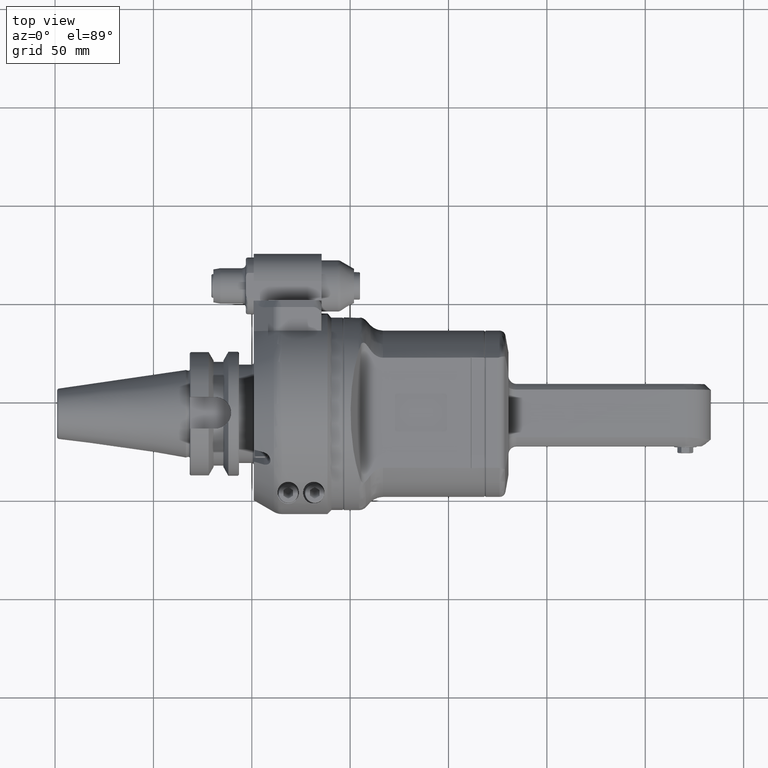
[diagram: clean part render]
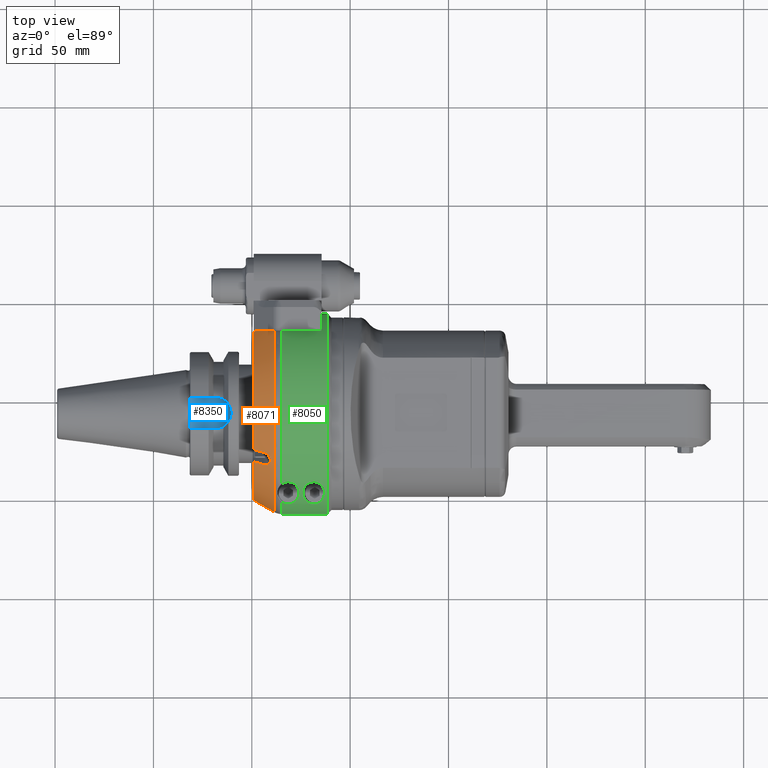
[diagram: same view with three faces highlighted in distinct colors, each labeled with its STEP entity id]
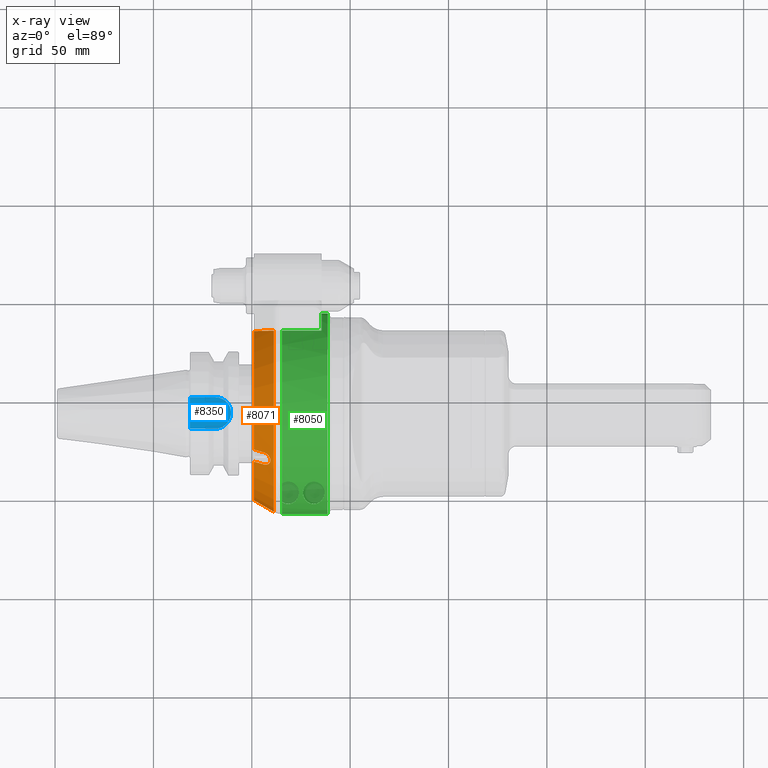
[diagram: x-ray of the same camera — body ghosted, the three highlighted faces saturated]
A machine part, top view with three faces highlighted in distinct colors.
The next image is the same camera in x-ray (body ghosted, the three faces saturated) — at least one of them is partly hidden behind the body in this view.
Their STEP definitions:

[orange] entity #8071 — the highlighted conical surface has half-angle 30 deg.
#64=CONICAL_SURFACE('',#8779,46.96410161514,0.523598775598299);
#144=(
BOUNDED_CURVE()
B_SPLINE_CURVE(2,(#13056,#13057,#13058),.UNSPECIFIED.,.F.,.F.)
B_SPLINE_CURVE_WITH_KNOTS((3,3),(-4.92391023083954,-2.81130786844121),
 .UNSPECIFIED.)
CURVE()
GEOMETRIC_REPRESENTATION_ITEM()
RATIONAL_B_SPLINE_CURVE((1.0074989594549,1.03062027413363,1.03252076511009))
REPRESENTATION_ITEM('')
);
#769=FACE_OUTER_BOUND('',#1280,.T.);
#1280=EDGE_LOOP('',(#6270,#6271,#6272,#6273,#6274,#6275,#6276,#6277));
#1694=B_SPLINE_CURVE_WITH_KNOTS('',3,(#13323,#13324,#13325,#13326,#13327,
#13328,#13329,#13330,#13331,#13332,#13333,#13334,#13335,#13336,#13337,#13338,
#13339,#13340),.UNSPECIFIED.,.F.,.F.,(4,2,2,2,2,2,2,2,4),(1.11206982951603,
1.24885677734264,1.4029266724495,1.5444028479349,1.68587902342029,1.82735519890569,
1.96883137439109,2.12290126949794,2.25968821731982),.UNSPECIFIED.);
#1696=B_SPLINE_CURVE_WITH_KNOTS('',3,(#13367,#13368,#13369,#13370,#13371,
#13372,#13373,#13374,#13375,#13376),.UNSPECIFIED.,.F.,.F.,(4,3,3,4),(0.,
0.3333333333333,0.6666666666667,1.),.UNSPECIFIED.);
#1698=B_SPLINE_CURVE_WITH_KNOTS('',3,(#13394,#13395,#13396,#13397,#13398,
#13399,#13400,#13401,#13402,#13403),.UNSPECIFIED.,.F.,.F.,(4,3,3,4),(0.,
0.3333333333333,0.6666666666667,1.),.UNSPECIFIED.);
#1699=B_SPLINE_CURVE_WITH_KNOTS('',3,(#13405,#13406,#13407,#13408,#13409,
#13410,#13411,#13412,#13413,#13414),.UNSPECIFIED.,.F.,.F.,(4,3,3,4),(0.,
0.3333333333333,0.6666666666667,1.),.UNSPECIFIED.);
#3082=CIRCLE('',#8780,49.92820323028);
#3083=CIRCLE('',#8781,44.);
#3084=CIRCLE('',#8782,44.);
#3579=VERTEX_POINT('',#13053);
#3580=VERTEX_POINT('',#13055);
#3621=VERTEX_POINT('',#13321);
#3622=VERTEX_POINT('',#13322);
#3627=VERTEX_POINT('',#13365);
#3628=VERTEX_POINT('',#13366);
#3631=VERTEX_POINT('',#13392);
#3632=VERTEX_POINT('',#13404);
#4518=EDGE_CURVE('',#3579,#3580,#144,.T.);
#4580=EDGE_CURVE('',#3621,#3622,#1694,.F.);
#4589=EDGE_CURVE('',#3627,#3628,#1696,.T.);
#4594=EDGE_CURVE('',#3580,#3628,#3082,.T.);
#4595=EDGE_CURVE('',#3631,#3579,#3083,.T.);
#4596=EDGE_CURVE('',#3631,#3622,#1698,.T.);
#4597=EDGE_CURVE('',#3621,#3632,#1699,.T.);
#4598=EDGE_CURVE('',#3627,#3632,#3084,.T.);
#6270=ORIENTED_EDGE('',*,*,#4594,.F.);
#6271=ORIENTED_EDGE('',*,*,#4518,.F.);
#6272=ORIENTED_EDGE('',*,*,#4595,.F.);
#6273=ORIENTED_EDGE('',*,*,#4596,.T.);
#6274=ORIENTED_EDGE('',*,*,#4580,.F.);
#6275=ORIENTED_EDGE('',*,*,#4597,.T.);
#6276=ORIENTED_EDGE('',*,*,#4598,.F.);
#6277=ORIENTED_EDGE('',*,*,#4589,.T.);
#8071=ADVANCED_FACE('',(#769),#64,.T.);
#8779=AXIS2_PLACEMENT_3D('',#13390,#10225,#10226);
#8780=AXIS2_PLACEMENT_3D('',#13391,#10227,#10228);
#8781=AXIS2_PLACEMENT_3D('',#13393,#10229,#10230);
#8782=AXIS2_PLACEMENT_3D('',#13415,#10231,#10232);
#10225=DIRECTION('center_axis',(1.,0.,0.));
#10226=DIRECTION('ref_axis',(0.,-1.,0.));
#10227=DIRECTION('center_axis',(1.,0.,0.));
#10228=DIRECTION('ref_axis',(0.,0.836200730225418,0.548423503116412));
#10229=DIRECTION('center_axis',(-1.,0.,0.));
#10230=DIRECTION('ref_axis',(0.,-0.429527235513105,0.90305390423411));
#10231=DIRECTION('center_axis',(-1.,0.,0.));
#10232=DIRECTION('ref_axis',(0.,-0.999418736024773,0.0340909090909091));
#13053=CARTESIAN_POINT('',(-51.5,41.75,13.89019438309));
#13055=CARTESIAN_POINT('',(-41.23205080757,41.75,27.38180011986));
#13056=CARTESIAN_POINT('Ctrl Pts',(-51.4999999999926,41.75,13.8901943831015));
#13057=CARTESIAN_POINT('Ctrl Pts',(-48.0442956678849,41.75,20.2102413125831));
#13058=CARTESIAN_POINT('Ctrl Pts',(-41.2320508075673,41.75,27.3818001198562));
#13321=CARTESIAN_POINT('',(-46.49999999996,-26.40905638146,38.74182743265));
#13322=CARTESIAN_POINT('',(-46.5,-20.34687855495,42.24182743261));
#13323=CARTESIAN_POINT('Ctrl Pts',(-46.5000000000022,-20.3468785549539,
42.2418274326121));
#13324=CARTESIAN_POINT('Ctrl Pts',(-46.0992085079171,-20.4629008008145,
42.4427838572514));
#13325=CARTESIAN_POINT('Ctrl Pts',(-45.6780271021369,-20.6496060415951,
42.6229397461814));
#13326=CARTESIAN_POINT('Ctrl Pts',(-44.8336229766582,-21.1765134567461,
42.9080443216851));
#13327=CARTESIAN_POINT('Ctrl Pts',(-44.416786404141,-21.5338827677997,43.000036123302));
#13328=CARTESIAN_POINT('Ctrl Pts',(-43.7689100689263,-22.2748250788787,
43.0423244163336));
#13329=CARTESIAN_POINT('Ctrl Pts',(-43.4858969585476,-22.7012115036421,
43.0050112903121));
#13330=CARTESIAN_POINT('Ctrl Pts',(-43.1011571537055,-23.5864558934365,
42.779754686541));
#13331=CARTESIAN_POINT('Ctrl Pts',(-43.,-24.0453321040545,42.5909113923236));
#13332=CARTESIAN_POINT('Ctrl Pts',(-43.,-24.8621451840586,42.1193241407056));
#13333=CARTESIAN_POINT('Ctrl Pts',(-43.1011571537054,-25.2551263794943,
41.8163473322267));
#13334=CARTESIAN_POINT('Ctrl Pts',(-43.4858969585476,-25.8928265156274,
41.1623315039927));
#13335=CARTESIAN_POINT('Ctrl Pts',(-43.7689100689263,-26.1383338430383,
40.8117265913295));
#13336=CARTESIAN_POINT('Ctrl Pts',(-44.416786404141,-26.4721822625297,40.1489075806805));
#13337=CARTESIAN_POINT('Ctrl Pts',(-44.8336229766582,-26.5711996809163,
39.7934207779667));
#13338=CARTESIAN_POINT('Ctrl Pts',(-45.6780271021231,-26.5877455833702,
39.1945532832615));
#13339=CARTESIAN_POINT('Ctrl Pts',(-46.0992085078879,-26.5250786273105,
38.9427838572684));
#13340=CARTESIAN_POINT('Ctrl Pts',(-46.4999999999604,-26.409056381457,38.7418274326329));
#13365=CARTESIAN_POINT('',(-51.5,-43.97442438509,1.5));
#13366=CARTESIAN_POINT('',(-41.2320587089715,-49.9056612221311,1.50000006858959));
#13367=CARTESIAN_POINT('Ctrl Pts',(-51.5,-43.97442438509,1.5));
#13368=CARTESIAN_POINT('Ctrl Pts',(-50.3591242554,-44.63349239584,1.5));
#13369=CARTESIAN_POINT('Ctrl Pts',(-49.2182445912652,-45.2925454352499,
1.5));
#13370=CARTESIAN_POINT('Ctrl Pts',(-48.0773635402228,-45.9515842405682,
1.5));
#13371=CARTESIAN_POINT('Ctrl Pts',(-46.9364824891801,-46.6106230458866,
1.5));
#13372=CARTESIAN_POINT('Ctrl Pts',(-45.7956000512299,-47.2696476171134,
1.5));
#13373=CARTESIAN_POINT('Ctrl Pts',(-44.6547122553372,-47.9286620207944,
1.5));
#13374=CARTESIAN_POINT('Ctrl Pts',(-43.5138244594448,-48.5876764244751,
1.5));
#13375=CARTESIAN_POINT('Ctrl Pts',(-42.37293130561,-49.24668066061,1.5));
#13376=CARTESIAN_POINT('Ctrl Pts',(-41.23206660847,-49.90565666041,1.5));
#13390=CARTESIAN_POINT('Origin',(-46.36602540378,0.,0.));
#13391=CARTESIAN_POINT('Origin',(-41.23205080757,0.,0.));
#13392=CARTESIAN_POINT('',(-51.5,-18.89919836257,39.7343717863));
#13393=CARTESIAN_POINT('Origin',(-51.5,0.,0.));
#13394=CARTESIAN_POINT('Ctrl Pts',(-51.5000000000014,-18.8991983625711,
39.7343717863022));
#13395=CARTESIAN_POINT('Ctrl Pts',(-50.9444542650933,-19.0600803989624,
40.0130276473551));
#13396=CARTESIAN_POINT('Ctrl Pts',(-50.388904658883,-19.2209523393287,40.2916660666116));
#13397=CARTESIAN_POINT('Ctrl Pts',(-49.8333517949314,-19.3818147452656,
40.5702879469609));
#13398=CARTESIAN_POINT('Ctrl Pts',(-49.2777989309796,-19.5426771512026,
40.8489098273103));
#13399=CARTESIAN_POINT('Ctrl Pts',(-48.7222428089151,-19.7035300221847,
41.12751516829));
#13400=CARTESIAN_POINT('Ctrl Pts',(-48.1666839961689,-19.8643738399584,
41.4061048113134));
#13401=CARTESIAN_POINT('Ctrl Pts',(-47.6111251834229,-20.0252176577319,
41.6846944543368));
#13402=CARTESIAN_POINT('Ctrl Pts',(-47.0555636796713,-20.186052421901,41.963268398972));
#13403=CARTESIAN_POINT('Ctrl Pts',(-46.5000000000021,-20.3468785549516,
42.2418274326133));
#13404=CARTESIAN_POINT('',(-51.5,-24.96137618907,36.2343717863));
#13405=CARTESIAN_POINT('Ctrl Pts',(-46.4999999999533,-26.4090563814534,
38.7418274326404));
#13406=CARTESIAN_POINT('Ctrl Pts',(-47.0555636796356,-26.2482302483957,
38.4632683989937));
#13407=CARTESIAN_POINT('Ctrl Pts',(-47.6111251834248,-26.0873955175853,
38.1846944350734));
#13408=CARTESIAN_POINT('Ctrl Pts',(-48.1666839961872,-25.9265517183778,
37.9061047813199));
#13409=CARTESIAN_POINT('Ctrl Pts',(-48.7222428089498,-25.7657079191702,
37.6275151275664));
#13410=CARTESIAN_POINT('Ctrl Pts',(-49.2777989310094,-25.6048550517416,
37.3489097845386));
#13411=CARTESIAN_POINT('Ctrl Pts',(-49.8333517949564,-25.4439926282768,
37.0702879143124));
#13412=CARTESIAN_POINT('Ctrl Pts',(-50.3889046589031,-25.283130204812,36.7916660440862));
#13413=CARTESIAN_POINT('Ctrl Pts',(-50.9444542651086,-25.1222582254486,
36.5130276473481));
#13414=CARTESIAN_POINT('Ctrl Pts',(-51.4999999999959,-24.9613761890659,
36.2343717863041));
#13415=CARTESIAN_POINT('Origin',(-51.5,0.,0.));

[blue] entity #8350 — the highlighted planar face has unit normal (0, 0, 1).
#574=PLANE('',#9245);
#1048=FACE_OUTER_BOUND('',#1595,.T.);
#1595=EDGE_LOOP('',(#7649,#7650,#7651,#7652));
#2231=LINE('',#44343,#2811);
#2242=LINE('',#44404,#2822);
#2251=LINE('',#44794,#2831);
#2811=VECTOR('',#11086,16.1);
#2822=VECTOR('',#11117,12.95);
#2831=VECTOR('',#11152,12.95);
#3220=CIRCLE('',#9114,8.05);
#3917=VERTEX_POINT('',#44340);
#3918=VERTEX_POINT('',#44342);
#3932=VERTEX_POINT('',#44402);
#3941=VERTEX_POINT('',#44509);
#5043=EDGE_CURVE('',#3917,#3918,#2231,.T.);
#5063=EDGE_CURVE('',#3932,#3917,#2242,.T.);
#5073=EDGE_CURVE('',#3932,#3941,#3220,.T.);
#5093=EDGE_CURVE('',#3941,#3918,#2251,.T.);
#7649=ORIENTED_EDGE('',*,*,#5043,.F.);
#7650=ORIENTED_EDGE('',*,*,#5063,.F.);
#7651=ORIENTED_EDGE('',*,*,#5073,.T.);
#7652=ORIENTED_EDGE('',*,*,#5093,.T.);
#8350=ADVANCED_FACE('',(#1048),#574,.T.);
#9114=AXIS2_PLACEMENT_3D('',#44511,#11127,#11128);
#9245=AXIS2_PLACEMENT_3D('',#45507,#11469,#11470);
#11086=DIRECTION('',(0.,1.,0.));
#11117=DIRECTION('',(-1.,0.,0.));
#11127=DIRECTION('center_axis',(0.,0.,1.));
#11128=DIRECTION('ref_axis',(0.,-1.,0.));
#11152=DIRECTION('',(-1.,0.,0.));
#11469=DIRECTION('center_axis',(0.,0.,1.));
#11470=DIRECTION('ref_axis',(1.,0.,0.));
#44340=CARTESIAN_POINT('',(-84.,-8.05,22.6));
#44342=CARTESIAN_POINT('',(-84.,8.05,22.6));
#44343=CARTESIAN_POINT('',(-84.,-8.05,22.6));
#44402=CARTESIAN_POINT('',(-71.05,-8.05,22.6));
#44404=CARTESIAN_POINT('',(-71.05,-8.05,22.6));
#44509=CARTESIAN_POINT('',(-71.05,8.05,22.6));
#44511=CARTESIAN_POINT('Origin',(-71.05,0.,22.6));
#44794=CARTESIAN_POINT('',(-71.05,8.05,22.6));
#45507=CARTESIAN_POINT('Origin',(-73.5,0.,22.6));

[green] entity #8050 — the highlighted cylindrical surface (partial cylindrical patch) has radius 51 mm, axis along (1, 0, 0).
#268=FACE_BOUND('',#1255,.T.);
#748=FACE_OUTER_BOUND('',#1254,.T.);
#1254=EDGE_LOOP('',(#6142,#6143,#6144,#6145,#6146,#6147,#6148,#6149,#6150,
#6151,#6152));
#1255=EDGE_LOOP('',(#6153,#6154));
#1680=B_SPLINE_CURVE_WITH_KNOTS('',3,(#12987,#12988,#12989,#12990,#12991,
#12992,#12993,#12994,#12995,#12996,#12997,#12998,#12999,#13000,#13001,#13002,
#13003,#13004),.UNSPECIFIED.,.F.,.F.,(4,2,2,2,2,2,2,2,4),(1.24497996375057,
1.57211089183856,1.89924181992655,2.10031433028339,2.30138684064023,2.50245935099707,
2.70353186135391,3.0306627894419,3.35779371752989),.UNSPECIFIED.);
#1683=B_SPLINE_CURVE_WITH_KNOTS('',3,(#13082,#13083,#13084,#13085,#13086,
#13087),.UNSPECIFIED.,.F.,.F.,(4,2,4),(-0.351622839102922,-0.201072510356838,
0.),.UNSPECIFIED.);
#1684=B_SPLINE_CURVE_WITH_KNOTS('',3,(#13089,#13090,#13091,#13092,#13093,
#13094,#13095,#13096,#13097,#13098,#13099,#13100,#13101,#13102,#13103,#13104,
#13105,#13106,#13107,#13108,#13109,#13110,#13111,#13112,#13113,#13114),
 .UNSPECIFIED.,.F.,.F.,(4,2,2,2,2,2,2,2,2,2,2,2,4),(0.,0.201072510356838,
0.402145020713677,0.729275948801668,1.05640687688966,1.45814522272358,1.85988356855749,
2.08063520459886,2.19101102261954,2.30138684064023,2.41176265866091,2.52213847668159,
2.7154535046118),.UNSPECIFIED.);
#1685=B_SPLINE_CURVE_WITH_KNOTS('',3,(#13118,#13119,#13120,#13121,#13122,
#13123,#13124,#13125,#13126,#13127,#13128,#13129,#13130,#13131,#13132,#13133,
#13134,#13135,#13136,#13137,#13138,#13139,#13140),.UNSPECIFIED.,.F.,.F.,
(4,2,2,2,2,3,2,2,2,2,4),(-1.24497996375057,-0.843241617916652,-0.441503272082734,
-0.220751636041367,-0.110375818020684,0.,0.110375818020684,0.220751636041367,
0.441503272082734,0.843241617916652,1.24497996375057),.UNSPECIFIED.);
#1975=LINE('',#13025,#2555);
#1977=LINE('',#13029,#2557);
#1983=LINE('',#13076,#2563);
#1984=LINE('',#13117,#2564);
#2555=VECTOR('',#10092,20.23205080757);
#2557=VECTOR('',#10094,20.23205080757);
#2563=VECTOR('',#10106,23.23206191748);
#2564=VECTOR('',#10115,23.23206611221);
#3057=CIRCLE('',#8734,51.);
#3058=CIRCLE('',#8735,51.);
#3059=CIRCLE('',#8736,51.);
#3060=CIRCLE('',#8737,51.);
#3061=CIRCLE('',#8738,51.);
#3560=VERTEX_POINT('',#12983);
#3562=VERTEX_POINT('',#12986);
#3569=VERTEX_POINT('',#13023);
#3570=VERTEX_POINT('',#13024);
#3571=VERTEX_POINT('',#13026);
#3572=VERTEX_POINT('',#13028);
#3582=VERTEX_POINT('',#13072);
#3583=VERTEX_POINT('',#13073);
#3584=VERTEX_POINT('',#13075);
#3585=VERTEX_POINT('',#13079);
#3586=VERTEX_POINT('',#13081);
#3587=VERTEX_POINT('',#13088);
#3588=VERTEX_POINT('',#13115);
#4498=EDGE_CURVE('',#3562,#3560,#1680,.T.);
#4508=EDGE_CURVE('',#3569,#3570,#1975,.T.);
#4510=EDGE_CURVE('',#3572,#3571,#1977,.T.);
#4521=EDGE_CURVE('',#3582,#3583,#3057,.T.);
#4522=EDGE_CURVE('',#3582,#3584,#1983,.T.);
#4523=EDGE_CURVE('',#3572,#3584,#3058,.T.);
#4524=EDGE_CURVE('',#3569,#3571,#3059,.T.);
#4525=EDGE_CURVE('',#3585,#3570,#3060,.T.);
#4526=EDGE_CURVE('',#3585,#3586,#1683,.T.);
#4527=EDGE_CURVE('',#3586,#3587,#1684,.T.);
#4528=EDGE_CURVE('',#3588,#3587,#3061,.T.);
#4529=EDGE_CURVE('',#3588,#3583,#1984,.T.);
#4530=EDGE_CURVE('',#3560,#3562,#1685,.T.);
#6142=ORIENTED_EDGE('',*,*,#4521,.F.);
#6143=ORIENTED_EDGE('',*,*,#4522,.T.);
#6144=ORIENTED_EDGE('',*,*,#4523,.F.);
#6145=ORIENTED_EDGE('',*,*,#4510,.T.);
#6146=ORIENTED_EDGE('',*,*,#4524,.F.);
#6147=ORIENTED_EDGE('',*,*,#4508,.T.);
#6148=ORIENTED_EDGE('',*,*,#4525,.F.);
#6149=ORIENTED_EDGE('',*,*,#4526,.T.);
#6150=ORIENTED_EDGE('',*,*,#4527,.T.);
#6151=ORIENTED_EDGE('',*,*,#4528,.F.);
#6152=ORIENTED_EDGE('',*,*,#4529,.T.);
#6153=ORIENTED_EDGE('',*,*,#4530,.T.);
#6154=ORIENTED_EDGE('',*,*,#4498,.T.);
#7812=CYLINDRICAL_SURFACE('',#8733,51.);
#8050=ADVANCED_FACE('',(#748,#268),#7812,.T.);
#8733=AXIS2_PLACEMENT_3D('',#13071,#10102,#10103);
#8734=AXIS2_PLACEMENT_3D('',#13074,#10104,#10105);
#8735=AXIS2_PLACEMENT_3D('',#13077,#10107,#10108);
#8736=AXIS2_PLACEMENT_3D('',#13078,#10109,#10110);
#8737=AXIS2_PLACEMENT_3D('',#13080,#10111,#10112);
#8738=AXIS2_PLACEMENT_3D('',#13116,#10113,#10114);
#10092=DIRECTION('',(-1.,0.,0.));
#10094=DIRECTION('',(1.,0.,0.));
#10102=DIRECTION('center_axis',(1.,0.,0.));
#10103=DIRECTION('ref_axis',(0.,1.,1.05873409698834E-10));
#10104=DIRECTION('center_axis',(1.,0.,0.));
#10105=DIRECTION('ref_axis',(0.,1.,0.));
#10106=DIRECTION('',(-1.,-3.620724304585E-11,1.230523343791E-9));
#10107=DIRECTION('center_axis',(-1.,0.,0.));
#10108=DIRECTION('ref_axis',(0.,0.818627450980411,-0.574324904998308));
#10109=DIRECTION('center_axis',(-1.,0.,0.));
#10110=DIRECTION('ref_axis',(0.,1.,0.));
#10111=DIRECTION('center_axis',(-1.,0.,0.));
#10112=DIRECTION('ref_axis',(0.,-0.711205879844998,0.702983781088798));
#10113=DIRECTION('center_axis',(-1.,0.,0.));
#10114=DIRECTION('ref_axis',(0.,-0.999567380468613,0.0294117647058804));
#10115=DIRECTION('',(1.,4.9878538981E-11,1.695142412605E-9));
#12983=CARTESIAN_POINT('',(-15.5,-40.7216512827,30.70418728464));
#12986=CARTESIAN_POINT('',(-26.5,-40.7216512827,30.7041872846388));
#12987=CARTESIAN_POINT('Ctrl Pts',(-26.5,-40.7216512827,30.7041872846388));
#12988=CARTESIAN_POINT('Ctrl Pts',(-26.5,-40.0651617871045,31.5748612439451));
#12989=CARTESIAN_POINT('Ctrl Pts',(-26.3775309176086,-39.319256727814,32.5000944024137));
#12990=CARTESIAN_POINT('Ctrl Pts',(-25.7586754272403,-37.8511872002494,
34.1986505928683));
#12991=CARTESIAN_POINT('Ctrl Pts',(-25.2627488095064,-37.1297545962508,
34.9727734951554));
#12992=CARTESIAN_POINT('Ctrl Pts',(-24.149351972259,-36.1782586100401,35.9500095679527));
#12993=CARTESIAN_POINT('Ctrl Pts',(-23.6039156243507,-35.8317714924385,
36.2931969488346));
#12994=CARTESIAN_POINT('Ctrl Pts',(-22.364786222781,-35.3524177755747,36.760284817991));
#12995=CARTESIAN_POINT('Ctrl Pts',(-21.6702417011895,-35.2216512827,36.8840789626077));
#12996=CARTESIAN_POINT('Ctrl Pts',(-20.3297582988105,-35.2216512827,36.8840789626077));
#12997=CARTESIAN_POINT('Ctrl Pts',(-19.635213777219,-35.3524177755747,36.760284817991));
#12998=CARTESIAN_POINT('Ctrl Pts',(-18.3960843756493,-35.8317714924385,
36.2931969488346));
#12999=CARTESIAN_POINT('Ctrl Pts',(-17.850648027741,-36.1782586100401,35.9500095679527));
#13000=CARTESIAN_POINT('Ctrl Pts',(-16.7372511904936,-37.1297545962508,
34.9727734951554));
#13001=CARTESIAN_POINT('Ctrl Pts',(-16.2413245727597,-37.8511872002494,
34.1986505928683));
#13002=CARTESIAN_POINT('Ctrl Pts',(-15.6224690823914,-39.319256727814,32.5000944024137));
#13003=CARTESIAN_POINT('Ctrl Pts',(-15.5,-40.0651617871045,31.5748612439451));
#13004=CARTESIAN_POINT('Ctrl Pts',(-15.5,-40.7216512827,30.7041872846388));
#13023=CARTESIAN_POINT('',(-17.,41.75,29.29057015492));
#13024=CARTESIAN_POINT('',(-37.23205080757,41.75,29.29057015492));
#13025=CARTESIAN_POINT('',(-17.,41.75,29.29057015492));
#13026=CARTESIAN_POINT('',(-17.,41.75,-29.29057015492));
#13028=CARTESIAN_POINT('',(-37.23205080757,41.75,-29.29057015492));
#13029=CARTESIAN_POINT('',(-37.23205080757,41.75,-29.29057015492));
#13071=CARTESIAN_POINT('Origin',(-43.,0.,0.));
#13072=CARTESIAN_POINT('',(-14.,-50.9779364039,-1.5));
#13073=CARTESIAN_POINT('',(-14.,-50.9779364039,1.5));
#13074=CARTESIAN_POINT('Origin',(-14.,0.,0.));
#13075=CARTESIAN_POINT('',(-37.2320508150874,-50.9779364043201,-1.49999998570621));
#13076=CARTESIAN_POINT('',(-14.,-50.9779364039,-1.5));
#13077=CARTESIAN_POINT('Origin',(-37.23205080757,0.,0.));
#13078=CARTESIAN_POINT('Origin',(-17.,0.,0.));
#13079=CARTESIAN_POINT('',(-37.23205080757,-36.27149987209,35.85217283553));
#13080=CARTESIAN_POINT('Origin',(-37.23205080757,0.,0.));
#13081=CARTESIAN_POINT('',(-34.,-35.2216512827,36.8840789626077));
#13082=CARTESIAN_POINT('Ctrl Pts',(-37.2320508075659,-36.2714998720946,
35.8521728355289));
#13083=CARTESIAN_POINT('Ctrl Pts',(-36.872037357752,-36.0100297211167,36.116701141561));
#13084=CARTESIAN_POINT('Ctrl Pts',(-36.44824163253,-35.7715494474255,36.3518780139684));
#13085=CARTESIAN_POINT('Ctrl Pts',(-35.364786222781,-35.3524177755747,36.760284817991));
#13086=CARTESIAN_POINT('Ctrl Pts',(-34.6702417011895,-35.2216512827,36.8840789626077));
#13087=CARTESIAN_POINT('Ctrl Pts',(-34.,-35.2216512827,36.8840789626077));
#13088=CARTESIAN_POINT('',(-37.23205080757,-45.1718026933,23.67505525733));
#13089=CARTESIAN_POINT('Ctrl Pts',(-34.,-35.2216512827,36.8840789626077));
#13090=CARTESIAN_POINT('Ctrl Pts',(-33.3297582988105,-35.2216512827,36.8840789626077));
#13091=CARTESIAN_POINT('Ctrl Pts',(-32.635213777219,-35.3524177755747,36.760284817991));
#13092=CARTESIAN_POINT('Ctrl Pts',(-31.3960843756493,-35.8317714924385,
36.2931969488346));
#13093=CARTESIAN_POINT('Ctrl Pts',(-30.850648027741,-36.1782586100401,35.9500095679527));
#13094=CARTESIAN_POINT('Ctrl Pts',(-29.7372511904936,-37.1297545962508,
34.9727734951554));
#13095=CARTESIAN_POINT('Ctrl Pts',(-29.2413245727597,-37.8511872002494,
34.1986505928683));
#13096=CARTESIAN_POINT('Ctrl Pts',(-28.6224690823914,-39.319256727814,32.5000944024137));
#13097=CARTESIAN_POINT('Ctrl Pts',(-28.5,-40.0651617871045,31.5748612439451));
#13098=CARTESIAN_POINT('Ctrl Pts',(-28.5,-41.5278636624324,29.6349422633357));
#13099=CARTESIAN_POINT('Ctrl Pts',(-28.6828935944427,-42.355228362554,28.4428786872814));
#13100=CARTESIAN_POINT('Ctrl Pts',(-29.4026147018995,-43.8528254301532,
26.0747465478085));
#13101=CARTESIAN_POINT('Ctrl Pts',(-29.9314939989374,-44.5246315328702,
24.8972647332227));
#13102=CARTESIAN_POINT('Ctrl Pts',(-31.001270294294,-45.3572445916551,23.326334884601));
#13103=CARTESIAN_POINT('Ctrl Pts',(-31.480842706606,-45.6482368635351,22.7481982089167));
#13104=CARTESIAN_POINT('Ctrl Pts',(-32.3308258147761,-45.9710043968678,
22.0845481334827));
#13105=CARTESIAN_POINT('Ctrl Pts',(-32.6354867073276,-46.0599916909384,
21.8974583438779));
#13106=CARTESIAN_POINT('Ctrl Pts',(-33.286197560497,-46.1851905126261,21.6321449190877));
#13107=CARTESIAN_POINT('Ctrl Pts',(-33.6320806065977,-46.2216512827,21.5536296873747));
#13108=CARTESIAN_POINT('Ctrl Pts',(-34.3679193934023,-46.2216512827,21.5536296873747));
#13109=CARTESIAN_POINT('Ctrl Pts',(-34.713802439503,-46.1851905126261,21.6321449190877));
#13110=CARTESIAN_POINT('Ctrl Pts',(-35.3645132926724,-46.0599916909384,
21.8974583438779));
#13111=CARTESIAN_POINT('Ctrl Pts',(-35.6691741852239,-45.9710043968678,
22.0845481334827));
#13112=CARTESIAN_POINT('Ctrl Pts',(-36.4487292658961,-45.6749807840842,
22.6932093917128));
#13113=CARTESIAN_POINT('Ctrl Pts',(-36.8782785168307,-45.4287400225037,
23.1848210334514));
#13114=CARTESIAN_POINT('Ctrl Pts',(-37.2320508075737,-45.1718026932997,
23.6750552573295));
#13115=CARTESIAN_POINT('',(-37.2320508231036,-50.9779364044793,1.499999980309));
#13116=CARTESIAN_POINT('Origin',(-37.23205080757,0.,0.));
#13117=CARTESIAN_POINT('',(-37.23206611221,-50.97793640506,1.499999960618));
#13118=CARTESIAN_POINT('Ctrl Pts',(-15.5,-40.7216512827,30.7041872846388));
#13119=CARTESIAN_POINT('Ctrl Pts',(-15.5,-41.5278636624324,29.6349422633357));
#13120=CARTESIAN_POINT('Ctrl Pts',(-15.6828935944427,-42.355228362554,28.4428786872814));
#13121=CARTESIAN_POINT('Ctrl Pts',(-16.4026147018995,-43.8528254301532,
26.0747465478085));
#13122=CARTESIAN_POINT('Ctrl Pts',(-16.9314939989374,-44.5246315328702,
24.8972647332227));
#13123=CARTESIAN_POINT('Ctrl Pts',(-18.001270294294,-45.3572445916551,23.326334884601));
#13124=CARTESIAN_POINT('Ctrl Pts',(-18.480842706606,-45.6482368635351,22.7481982089167));
#13125=CARTESIAN_POINT('Ctrl Pts',(-19.3308258147761,-45.9710043968678,
22.0845481334827));
#13126=CARTESIAN_POINT('Ctrl Pts',(-19.6354867073276,-46.0599916909384,
21.8974583438779));
#13127=CARTESIAN_POINT('Ctrl Pts',(-20.286197560497,-46.1851905126261,21.6321449190877));
#13128=CARTESIAN_POINT('Ctrl Pts',(-20.6320806065977,-46.2216512827,21.5536296873747));
#13129=CARTESIAN_POINT('Ctrl Pts',(-21.,-46.2216512827,21.5536296873747));
#13130=CARTESIAN_POINT('Ctrl Pts',(-21.3679193934023,-46.2216512827,21.5536296873747));
#13131=CARTESIAN_POINT('Ctrl Pts',(-21.713802439503,-46.1851905126261,21.6321449190877));
#13132=CARTESIAN_POINT('Ctrl Pts',(-22.3645132926724,-46.0599916909384,
21.8974583438779));
#13133=CARTESIAN_POINT('Ctrl Pts',(-22.6691741852239,-45.9710043968678,
22.0845481334827));
#13134=CARTESIAN_POINT('Ctrl Pts',(-23.519157293394,-45.6482368635351,22.7481982089167));
#13135=CARTESIAN_POINT('Ctrl Pts',(-23.998729705706,-45.3572445916551,23.326334884601));
#13136=CARTESIAN_POINT('Ctrl Pts',(-25.0685060010626,-44.5246315328702,
24.8972647332227));
#13137=CARTESIAN_POINT('Ctrl Pts',(-25.5973852981005,-43.8528254301532,
26.0747465478085));
#13138=CARTESIAN_POINT('Ctrl Pts',(-26.3171064055573,-42.355228362554,28.4428786872814));
#13139=CARTESIAN_POINT('Ctrl Pts',(-26.5,-41.5278636624324,29.6349422633357));
#13140=CARTESIAN_POINT('Ctrl Pts',(-26.5,-40.7216512827,30.7041872846388));